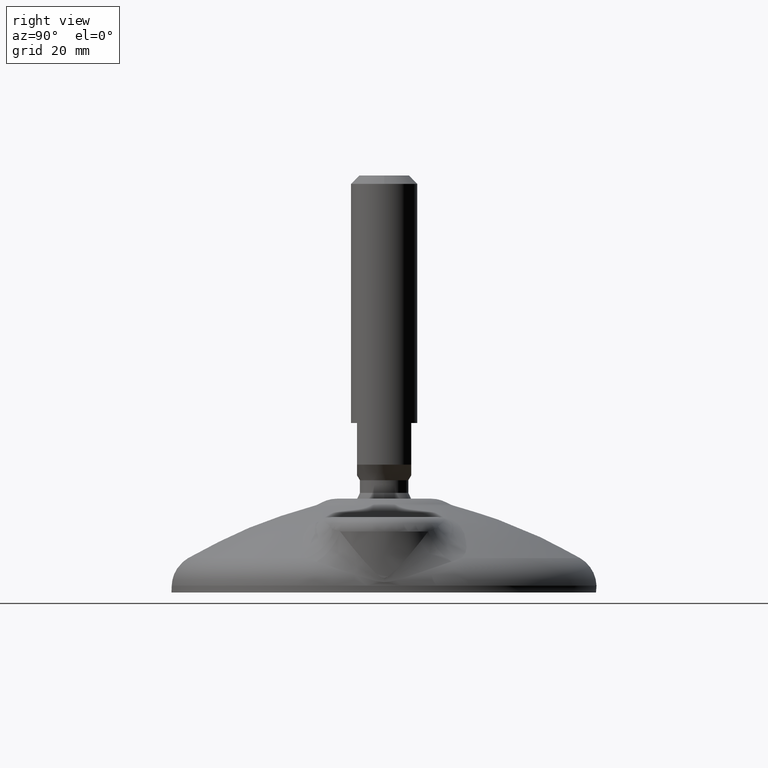
[diagram: clean part render]
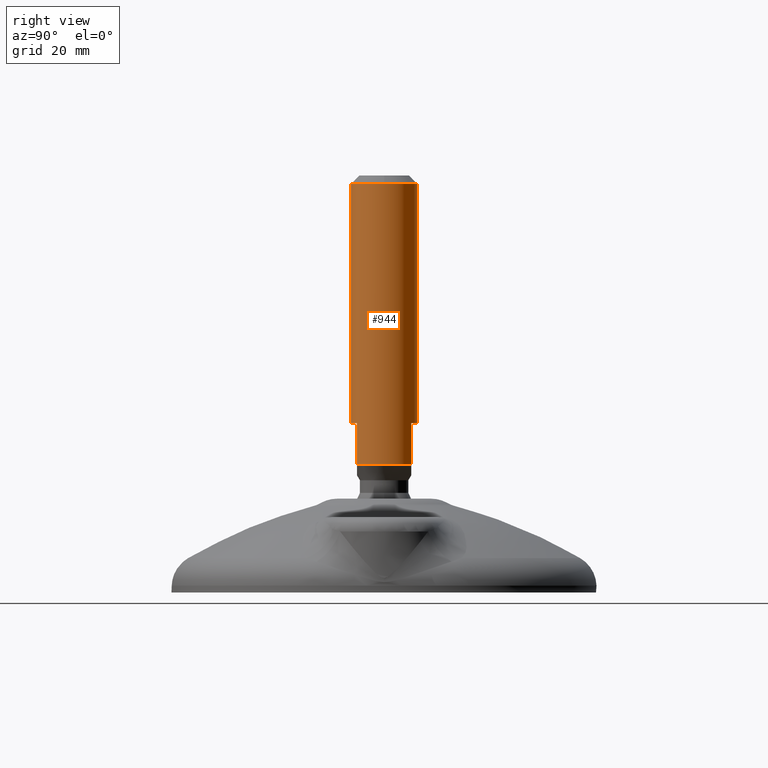
[diagram: same view with one face highlighted and labeled with its STEP entity id]
A machine part, right view. The second image highlights one B-rep face of the part: STEP entity #944.
In plain terms, the highlighted cylindrical surface (bore or boss wall) has radius 8 mm, axis along (-0, 0, 1).
Its self-contained STEP definition (entity closure, byte-faithful):
#92=CYLINDRICAL_SURFACE('',#1073,7.99999979647845);
#106=LINE('',#5392,#128);
#107=LINE('',#5396,#129);
#108=LINE('',#5400,#130);
#109=LINE('',#5404,#131);
#110=LINE('',#5408,#132);
#128=VECTOR('',#1303,7.99999979647845);
#129=VECTOR('',#1306,1.);
#130=VECTOR('',#1309,1.);
#131=VECTOR('',#1312,1.);
#132=VECTOR('',#1315,1.);
#195=FACE_OUTER_BOUND('',#262,.T.);
#262=EDGE_LOOP('',(#769,#770,#771,#772,#773,#774,#775,#776,#777,#778,#779,
#780,#781));
#334=CIRCLE('',#1074,7.99999979647845);
#335=CIRCLE('',#1075,7.99999877179908);
#336=CIRCLE('',#1076,7.99999979647845);
#337=CIRCLE('',#1077,7.99999877179908);
#338=CIRCLE('',#1078,7.99999979647845);
#339=CIRCLE('',#1079,7.99999877179908);
#340=CIRCLE('',#1080,7.99999979647845);
#411=VERTEX_POINT('',#5388);
#412=VERTEX_POINT('',#5389);
#413=VERTEX_POINT('',#5391);
#414=VERTEX_POINT('',#5393);
#415=VERTEX_POINT('',#5395);
#416=VERTEX_POINT('',#5397);
#417=VERTEX_POINT('',#5399);
#418=VERTEX_POINT('',#5401);
#419=VERTEX_POINT('',#5403);
#420=VERTEX_POINT('',#5405);
#421=VERTEX_POINT('',#5407);
#533=EDGE_CURVE('',#411,#412,#334,.F.);
#534=EDGE_CURVE('',#412,#413,#106,.T.);
#535=EDGE_CURVE('',#413,#414,#335,.T.);
#536=EDGE_CURVE('',#414,#415,#107,.T.);
#537=EDGE_CURVE('',#415,#416,#336,.F.);
#538=EDGE_CURVE('',#416,#417,#108,.F.);
#539=EDGE_CURVE('',#417,#418,#337,.T.);
#540=EDGE_CURVE('',#419,#418,#109,.F.);
#541=EDGE_CURVE('',#420,#419,#338,.F.);
#542=EDGE_CURVE('',#421,#420,#110,.T.);
#543=EDGE_CURVE('',#421,#413,#339,.T.);
#544=EDGE_CURVE('',#412,#411,#340,.F.);
#769=ORIENTED_EDGE('',*,*,#533,.T.);
#770=ORIENTED_EDGE('',*,*,#534,.T.);
#771=ORIENTED_EDGE('',*,*,#535,.T.);
#772=ORIENTED_EDGE('',*,*,#536,.T.);
#773=ORIENTED_EDGE('',*,*,#537,.T.);
#774=ORIENTED_EDGE('',*,*,#538,.T.);
#775=ORIENTED_EDGE('',*,*,#539,.T.);
#776=ORIENTED_EDGE('',*,*,#540,.F.);
#777=ORIENTED_EDGE('',*,*,#541,.F.);
#778=ORIENTED_EDGE('',*,*,#542,.F.);
#779=ORIENTED_EDGE('',*,*,#543,.T.);
#780=ORIENTED_EDGE('',*,*,#534,.F.);
#781=ORIENTED_EDGE('',*,*,#544,.T.);
#944=ADVANCED_FACE('',(#195),#92,.T.);
#1073=AXIS2_PLACEMENT_3D('',#5387,#1299,#1300);
#1074=AXIS2_PLACEMENT_3D('',#5390,#1301,#1302);
#1075=AXIS2_PLACEMENT_3D('',#5394,#1304,#1305);
#1076=AXIS2_PLACEMENT_3D('',#5398,#1307,#1308);
#1077=AXIS2_PLACEMENT_3D('',#5402,#1310,#1311);
#1078=AXIS2_PLACEMENT_3D('',#5406,#1313,#1314);
#1079=AXIS2_PLACEMENT_3D('',#5409,#1316,#1317);
#1080=AXIS2_PLACEMENT_3D('',#5410,#1318,#1319);
#1299=DIRECTION('center_axis',(-1.3938298E-8,0.,1.));
#1300=DIRECTION('ref_axis',(1.,0.,1.3938298E-8));
#1301=DIRECTION('center_axis',(0.,0.,1.));
#1302=DIRECTION('ref_axis',(1.,0.,0.));
#1303=DIRECTION('',(1.3938298E-8,0.,-1.));
#1304=DIRECTION('center_axis',(0.,0.,1.));
#1305=DIRECTION('ref_axis',(1.,0.,0.));
#1306=DIRECTION('',(-1.3938299E-8,0.,1.));
#1307=DIRECTION('center_axis',(5.158643E-16,-7.273662E-16,-1.));
#1308=DIRECTION('ref_axis',(0.,1.,-7.273662E-16));
#1309=DIRECTION('',(-1.3938299E-8,0.,1.));
#1310=DIRECTION('center_axis',(0.,0.,1.));
#1311=DIRECTION('ref_axis',(1.,0.,0.));
#1312=DIRECTION('',(-1.3938299E-8,0.,1.));
#1313=DIRECTION('center_axis',(-5.158643E-16,7.273662E-16,1.));
#1314=DIRECTION('ref_axis',(0.,-1.,7.273662E-16));
#1315=DIRECTION('',(-1.3938299E-8,0.,1.));
#1316=DIRECTION('center_axis',(0.,0.,1.));
#1317=DIRECTION('ref_axis',(1.,0.,0.));
#1318=DIRECTION('center_axis',(0.,0.,1.));
#1319=DIRECTION('ref_axis',(1.,0.,0.));
#5387=CARTESIAN_POINT('Origin',(-2.831105206E-6,4.919660057E-6,145.649215401367));
#5388=CARTESIAN_POINT('',(7.99999762951926,4.919660057E-6,98.0002117693444));
#5389=CARTESIAN_POINT('',(-8.00000196343764,4.91966005602028E-6,98.0002117693444));
#5390=CARTESIAN_POINT('Origin',(-2.166959184598E-6,4.919660057E-6,98.0002117693444));
#5391=CARTESIAN_POINT('',(-8.00000102467937,4.91966005602028E-6,30.6492141813936));
#5392=CARTESIAN_POINT('',(-8.00000262758365,4.91966005602028E-6,145.649215289861));
#5393=CARTESIAN_POINT('',(-4.66368979020848,-6.4999948783487,30.649214811608));
#5394=CARTESIAN_POINT('Origin',(-1.228200899E-6,4.919660057E-6,30.6492144044064));
#5395=CARTESIAN_POINT('',(-4.66369054383021,-6.49999508071987,40.6492154013672));
#5396=CARTESIAN_POINT('',(-4.66369200853279,-6.49999508033994,145.649215336363));
#5397=CARTESIAN_POINT('',(4.66368781102494,-6.49999507996001,40.6492154013672));
#5398=CARTESIAN_POINT('Origin',(-1.367583916E-6,4.919660087E-6,40.6492154013672));
#5399=CARTESIAN_POINT('',(4.66368730962043,-6.49999487938715,30.6492148339938));
#5400=CARTESIAN_POINT('',(4.66368634632238,-6.49999508033994,145.649215466371));
#5401=CARTESIAN_POINT('',(4.66368730962043,6.50000471870726,30.6492148339938));
#5402=CARTESIAN_POINT('Origin',(-1.228200899E-6,4.919660057E-6,30.6492144044064));
#5403=CARTESIAN_POINT('',(4.66368781102496,6.50000491928013,40.6492154013672));
#5404=CARTESIAN_POINT('',(4.66368634632238,6.50000491966006,145.649215466371));
#5405=CARTESIAN_POINT('',(-4.66369054383023,6.50000492003999,40.6492154013672));
#5406=CARTESIAN_POINT('Origin',(-1.367583916E-6,4.919660087E-6,40.6492154013672));
#5407=CARTESIAN_POINT('',(-4.66368979020852,6.5000047176688,30.6492148116081));
#5408=CARTESIAN_POINT('',(-4.66369200853279,6.50000491966006,145.649215336363));
#5409=CARTESIAN_POINT('Origin',(-1.228200899E-6,4.919660057E-6,30.6492144044064));
#5410=CARTESIAN_POINT('Origin',(-2.166959184598E-6,4.919660057E-6,98.0002117693444));